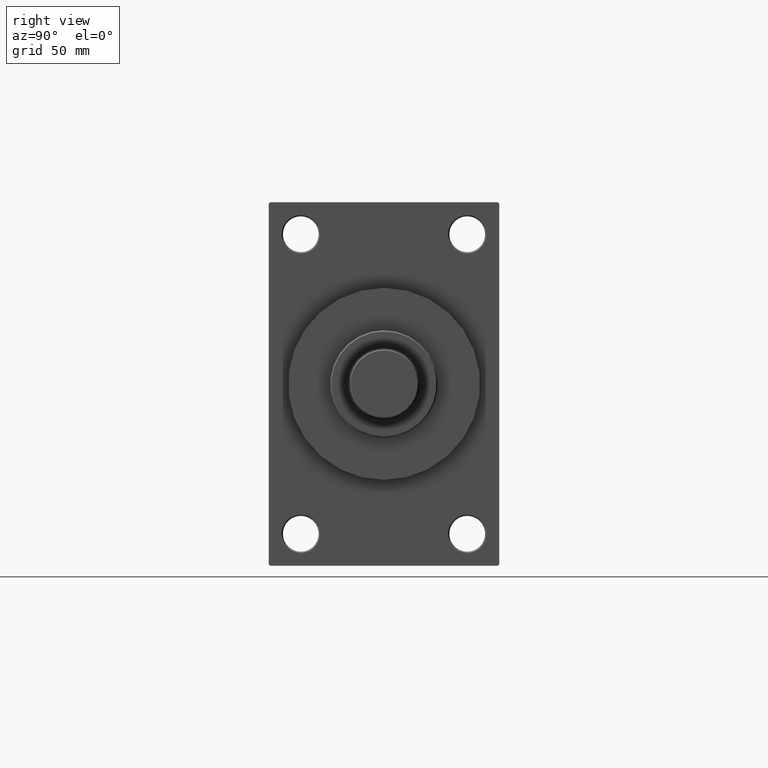
[diagram: clean part render]
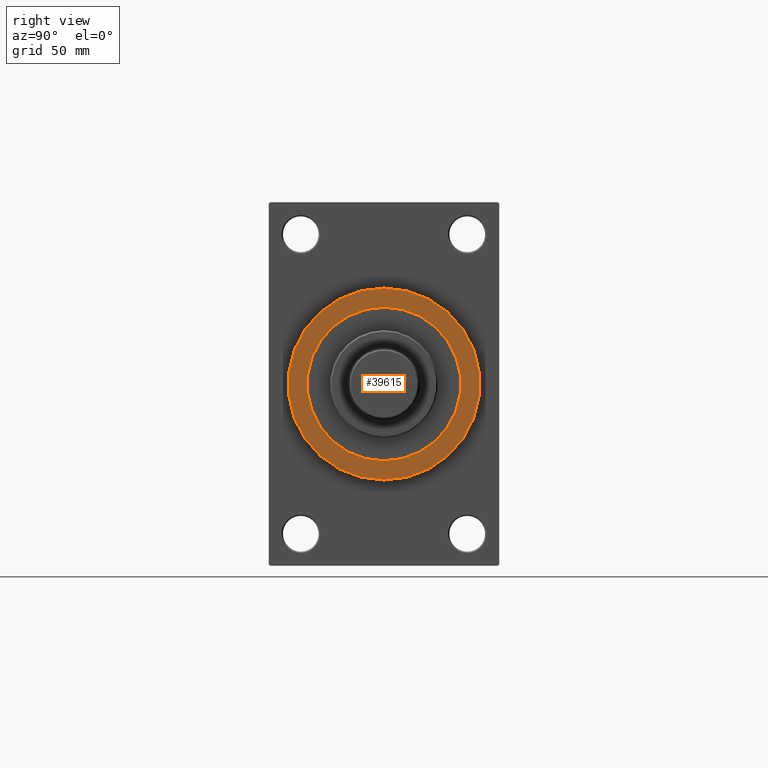
[diagram: same view with one face highlighted and labeled with its STEP entity id]
A machine part, right view. The second image highlights one B-rep face of the part: STEP entity #39615.
In plain terms, the highlighted planar face has unit normal (1, 0, 0).
Its self-contained STEP definition (entity closure, byte-faithful):
#205 = CIRCLE ( 'NONE', #40987, 30.00000000000000000 ) ;
#335 = CARTESIAN_POINT ( 'NONE',  ( 156.0000000000000284, 0.000000000000000000, 0.000000000000000000 ) ) ;
#877 = DIRECTION ( 'NONE',  ( 0.000000000000000000, 0.000000000000000000, -1.000000000000000000 ) ) ;
#2759 = VERTEX_POINT ( 'NONE', #37095 ) ;
#2994 = AXIS2_PLACEMENT_3D ( 'NONE', #4744, #41379, #877 ) ;
#3495 = DIRECTION ( 'NONE',  ( 1.000000000000000000, 0.000000000000000000, 0.000000000000000000 ) ) ;
#3871 = DIRECTION ( 'NONE',  ( 0.000000000000000000, 0.000000000000000000, -1.000000000000000000 ) ) ;
#4196 = CARTESIAN_POINT ( 'NONE',  ( 156.0000000000000284, 0.000000000000000000, 0.000000000000000000 ) ) ;
#4542 = DIRECTION ( 'NONE',  ( 1.000000000000000000, 0.000000000000000000, 0.000000000000000000 ) ) ;
#4744 = CARTESIAN_POINT ( 'NONE',  ( 156.0000000000000284, 0.000000000000000000, 0.000000000000000000 ) ) ;
#5062 = EDGE_LOOP ( 'NONE', ( #43554, #34940 ) ) ;
#6294 = VERTEX_POINT ( 'NONE', #30897 ) ;
#6299 = CARTESIAN_POINT ( 'NONE',  ( 156.0000000000000284, 0.000000000000000000, 0.000000000000000000 ) ) ;
#7491 = AXIS2_PLACEMENT_3D ( 'NONE', #4196, #18924, #15293 ) ;
#8378 = CIRCLE ( 'NONE', #2994, 30.00000000000000000 ) ;
#10404 = DIRECTION ( 'NONE',  ( 1.000000000000000000, 0.000000000000000000, 0.000000000000000000 ) ) ;
#12195 = EDGE_CURVE ( 'NONE', #38365, #2759, #14406, .T. ) ;
#13271 = ORIENTED_EDGE ( 'NONE', *, *, #16319, .F. ) ;
#14406 = CIRCLE ( 'NONE', #7491, 37.50000000000000711 ) ;
#15293 = DIRECTION ( 'NONE',  ( 0.000000000000000000, 0.000000000000000000, -1.000000000000000000 ) ) ;
#15395 = CARTESIAN_POINT ( 'NONE',  ( 156.0000000000000284, 0.000000000000000000, 0.000000000000000000 ) ) ;
#16319 = EDGE_CURVE ( 'NONE', #6294, #27155, #8378, .T. ) ;
#17741 = EDGE_CURVE ( 'NONE', #2759, #38365, #19973, .T. ) ;
#18924 = DIRECTION ( 'NONE',  ( 1.000000000000000000, 0.000000000000000000, 0.000000000000000000 ) ) ;
#19973 = CIRCLE ( 'NONE', #33837, 37.50000000000000711 ) ;
#21922 = AXIS2_PLACEMENT_3D ( 'NONE', #15395, #4542, #44553 ) ;
#22380 = CARTESIAN_POINT ( 'NONE',  ( 156.0000000000000284, 0.000000000000000000, 37.50000000000000711 ) ) ;
#24364 = ORIENTED_EDGE ( 'NONE', *, *, #35587, .F. ) ;
#27155 = VERTEX_POINT ( 'NONE', #37674 ) ;
#29056 = DIRECTION ( 'NONE',  ( 0.000000000000000000, 0.000000000000000000, -1.000000000000000000 ) ) ;
#30897 = CARTESIAN_POINT ( 'NONE',  ( 156.0000000000000284, 0.000000000000000000, -30.00000000000000000 ) ) ;
#33837 = AXIS2_PLACEMENT_3D ( 'NONE', #335, #3495, #29056 ) ;
#34940 = ORIENTED_EDGE ( 'NONE', *, *, #17741, .T. ) ;
#35587 = EDGE_CURVE ( 'NONE', #27155, #6294, #205, .T. ) ;
#37095 = CARTESIAN_POINT ( 'NONE',  ( 156.0000000000000284, 4.592425496802575156E-15, -37.50000000000000711 ) ) ;
#37566 = PLANE ( 'NONE',  #21922 ) ;
#37674 = CARTESIAN_POINT ( 'NONE',  ( 156.0000000000000284, 3.673940397442059178E-15, 30.00000000000000000 ) ) ;
#37800 = FACE_BOUND ( 'NONE', #40978, .T. ) ;
#38365 = VERTEX_POINT ( 'NONE', #22380 ) ;
#39615 = ADVANCED_FACE ( 'NONE', ( #37800, #44312 ), #37566, .T. ) ;
#40978 = EDGE_LOOP ( 'NONE', ( #13271, #24364 ) ) ;
#40987 = AXIS2_PLACEMENT_3D ( 'NONE', #6299, #10404, #3871 ) ;
#41379 = DIRECTION ( 'NONE',  ( 1.000000000000000000, 0.000000000000000000, 0.000000000000000000 ) ) ;
#43554 = ORIENTED_EDGE ( 'NONE', *, *, #12195, .T. ) ;
#44312 = FACE_OUTER_BOUND ( 'NONE', #5062, .T. ) ;
#44553 = DIRECTION ( 'NONE',  ( 0.000000000000000000, 0.000000000000000000, -1.000000000000000000 ) ) ;